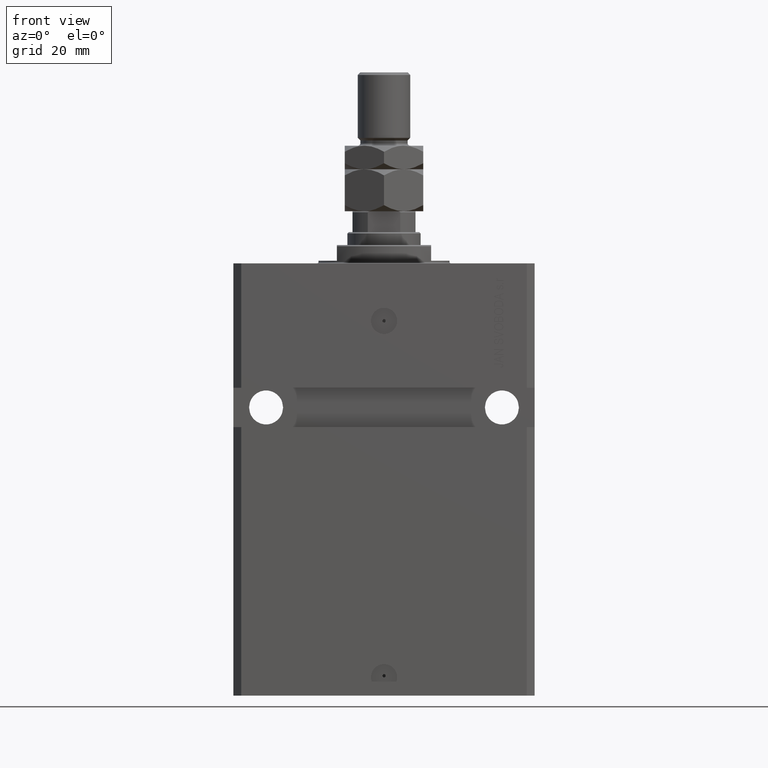
[diagram: clean part render]
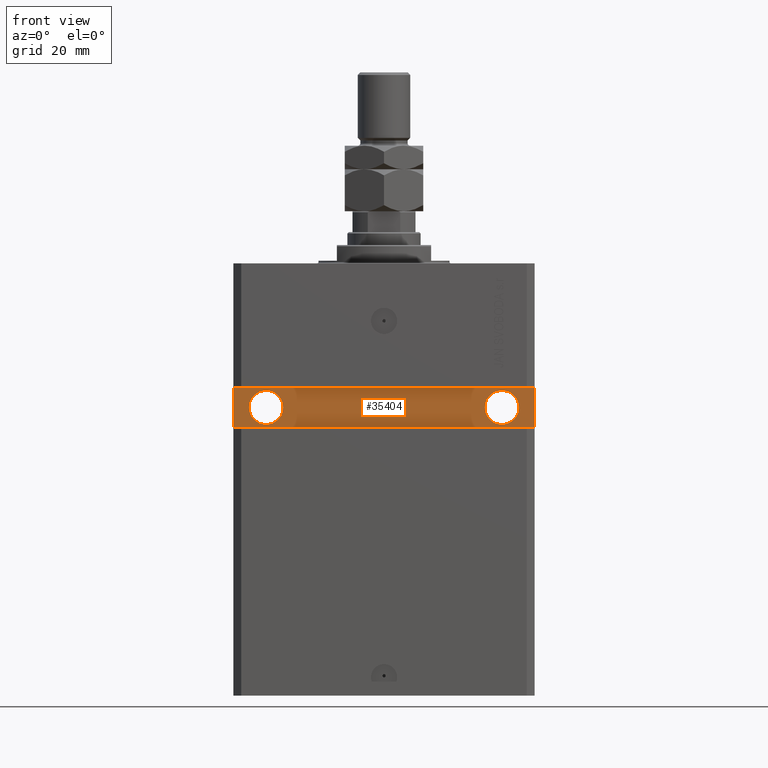
[diagram: same view with one face highlighted and labeled with its STEP entity id]
A machine part, front view. The second image highlights one B-rep face of the part: STEP entity #35404.
In plain terms, the highlighted planar face has unit normal (0, -1, 0).
Its self-contained STEP definition (entity closure, byte-faithful):
#302 = LINE ( 'NONE', #26106, #29911 ) ;
#436 = DIRECTION ( 'NONE',  ( 1.000000000000000000, 0.000000000000000000, 0.000000000000000000 ) ) ;
#2217 = AXIS2_PLACEMENT_3D ( 'NONE', #15124, #7339, #23815 ) ;
#2313 = EDGE_CURVE ( 'NONE', #16686, #27103, #302, .T. ) ;
#3055 = LINE ( 'NONE', #17894, #21486 ) ;
#3327 = CARTESIAN_POINT ( 'NONE',  ( -57.50000000000002132, -40.00000000000000000, -47.50000000000000711 ) ) ;
#3385 = CARTESIAN_POINT ( 'NONE',  ( -44.99999999999998579, -40.00000000000000000, -55.00000000000001421 ) ) ;
#3386 = VERTEX_POINT ( 'NONE', #3327 ) ;
#3988 = VERTEX_POINT ( 'NONE', #42585 ) ;
#5648 = EDGE_CURVE ( 'NONE', #27103, #3386, #3055, .T. ) ;
#7023 = EDGE_LOOP ( 'NONE', ( #25911, #12474 ) ) ;
#7339 = DIRECTION ( 'NONE',  ( 7.680174481697265102E-17, -1.000000000000000000, 0.000000000000000000 ) ) ;
#8699 = EDGE_CURVE ( 'NONE', #3386, #42381, #45331, .T. ) ;
#10190 = CIRCLE ( 'NONE', #25735, 6.499999999999999112 ) ;
#11211 = EDGE_CURVE ( 'NONE', #42227, #12662, #38704, .T. ) ;
#11240 = CARTESIAN_POINT ( 'NONE',  ( -57.50000000000002132, -40.00000000000000000, -62.50000000000000000 ) ) ;
#11753 = ORIENTED_EDGE ( 'NONE', *, *, #5648, .T. ) ;
#12328 = CIRCLE ( 'NONE', #2217, 6.499999999999999112 ) ;
#12386 = CIRCLE ( 'NONE', #26358, 6.499999999999999112 ) ;
#12468 = EDGE_CURVE ( 'NONE', #3988, #30810, #12386, .T. ) ;
#12474 = ORIENTED_EDGE ( 'NONE', *, *, #12468, .F. ) ;
#12662 = VERTEX_POINT ( 'NONE', #19919 ) ;
#14260 = AXIS2_PLACEMENT_3D ( 'NONE', #44440, #30381, #30129 ) ;
#15124 = CARTESIAN_POINT ( 'NONE',  ( 45.00000000000001421, -39.99999999999999289, -55.00000000000000000 ) ) ;
#16686 = VERTEX_POINT ( 'NONE', #40250 ) ;
#17894 = CARTESIAN_POINT ( 'NONE',  ( 57.50000000000000711, -39.99999999999998579, -47.49999999999998579 ) ) ;
#19007 = CARTESIAN_POINT ( 'NONE',  ( 45.00000000000001421, -39.99999999999999289, -55.00000000000000000 ) ) ;
#19597 = ORIENTED_EDGE ( 'NONE', *, *, #2313, .T. ) ;
#19919 = CARTESIAN_POINT ( 'NONE',  ( 38.50000000000001421, -39.99999999999999289, -55.00000000000000000 ) ) ;
#20282 = EDGE_CURVE ( 'NONE', #12662, #42227, #12328, .T. ) ;
#21486 = VECTOR ( 'NONE', #32006, 1000.000000000000000 ) ;
#22124 = PLANE ( 'NONE',  #14260 ) ;
#22159 = ORIENTED_EDGE ( 'NONE', *, *, #20282, .F. ) ;
#23815 = DIRECTION ( 'NONE',  ( 1.000000000000000000, 0.000000000000000000, 0.000000000000000000 ) ) ;
#24791 = CARTESIAN_POINT ( 'NONE',  ( -38.49999999999998579, -40.00000000000000000, -55.00000000000001421 ) ) ;
#25555 = AXIS2_PLACEMENT_3D ( 'NONE', #19007, #26562, #34554 ) ;
#25735 = AXIS2_PLACEMENT_3D ( 'NONE', #29858, #29139, #436 ) ;
#25911 = ORIENTED_EDGE ( 'NONE', *, *, #30847, .F. ) ;
#26106 = CARTESIAN_POINT ( 'NONE',  ( 57.50000000000000711, -39.99999999999998579, -62.49999999999999289 ) ) ;
#26345 = DIRECTION ( 'NONE',  ( 0.000000000000000000, 0.000000000000000000, 1.000000000000000000 ) ) ;
#26358 = AXIS2_PLACEMENT_3D ( 'NONE', #3385, #33046, #30614 ) ;
#26508 = FACE_BOUND ( 'NONE', #7023, .T. ) ;
#26562 = DIRECTION ( 'NONE',  ( 7.680174481697265102E-17, -1.000000000000000000, 0.000000000000000000 ) ) ;
#26664 = CARTESIAN_POINT ( 'NONE',  ( -57.50000000000002132, -40.00000000000000000, -47.50000000000000711 ) ) ;
#26692 = CARTESIAN_POINT ( 'NONE',  ( 51.50000000000001421, -39.99999999999999289, -55.00000000000000000 ) ) ;
#27103 = VERTEX_POINT ( 'NONE', #42228 ) ;
#29139 = DIRECTION ( 'NONE',  ( 1.101411730780568590E-16, -1.000000000000000000, 0.000000000000000000 ) ) ;
#29321 = VECTOR ( 'NONE', #41439, 1000.000000000000000 ) ;
#29491 = LINE ( 'NONE', #11240, #43620 ) ;
#29652 = FACE_BOUND ( 'NONE', #47563, .T. ) ;
#29858 = CARTESIAN_POINT ( 'NONE',  ( -44.99999999999998579, -40.00000000000000000, -55.00000000000001421 ) ) ;
#29911 = VECTOR ( 'NONE', #26345, 1000.000000000000000 ) ;
#30129 = DIRECTION ( 'NONE',  ( 1.000000000000000000, 1.206764157201257045E-16, 0.000000000000000000 ) ) ;
#30381 = DIRECTION ( 'NONE',  ( 1.206764157201257045E-16, -1.000000000000000000, 0.000000000000000000 ) ) ;
#30614 = DIRECTION ( 'NONE',  ( 1.000000000000000000, 0.000000000000000000, 0.000000000000000000 ) ) ;
#30810 = VERTEX_POINT ( 'NONE', #24791 ) ;
#30847 = EDGE_CURVE ( 'NONE', #30810, #3988, #10190, .T. ) ;
#31430 = EDGE_LOOP ( 'NONE', ( #39519, #19597, #11753, #37440 ) ) ;
#32006 = DIRECTION ( 'NONE',  ( -1.000000000000000000, -1.206764157201257045E-16, -1.810146235801885321E-16 ) ) ;
#32013 = DIRECTION ( 'NONE',  ( 1.000000000000000000, 1.206764157201257045E-16, 6.033820786006285224E-17 ) ) ;
#32146 = EDGE_CURVE ( 'NONE', #42381, #16686, #29491, .T. ) ;
#33046 = DIRECTION ( 'NONE',  ( 1.101411730780568590E-16, -1.000000000000000000, 0.000000000000000000 ) ) ;
#34554 = DIRECTION ( 'NONE',  ( 1.000000000000000000, 0.000000000000000000, 0.000000000000000000 ) ) ;
#35404 = ADVANCED_FACE ( 'NONE', ( #29652, #26508, #44681 ), #22124, .T. ) ;
#37440 = ORIENTED_EDGE ( 'NONE', *, *, #8699, .T. ) ;
#38704 = CIRCLE ( 'NONE', #25555, 6.499999999999999112 ) ;
#39519 = ORIENTED_EDGE ( 'NONE', *, *, #32146, .T. ) ;
#39742 = CARTESIAN_POINT ( 'NONE',  ( -57.50000000000002132, -40.00000000000000000, -62.50000000000000000 ) ) ;
#40250 = CARTESIAN_POINT ( 'NONE',  ( 57.50000000000000711, -39.99999999999998579, -62.49999999999999289 ) ) ;
#41439 = DIRECTION ( 'NONE',  ( 0.000000000000000000, 0.000000000000000000, -1.000000000000000000 ) ) ;
#42227 = VERTEX_POINT ( 'NONE', #26692 ) ;
#42228 = CARTESIAN_POINT ( 'NONE',  ( 57.50000000000000711, -39.99999999999998579, -47.49999999999998579 ) ) ;
#42381 = VERTEX_POINT ( 'NONE', #39742 ) ;
#42585 = CARTESIAN_POINT ( 'NONE',  ( -51.49999999999998579, -40.00000000000000000, -55.00000000000001421 ) ) ;
#43620 = VECTOR ( 'NONE', #32013, 1000.000000000000000 ) ;
#43761 = ORIENTED_EDGE ( 'NONE', *, *, #11211, .F. ) ;
#44440 = CARTESIAN_POINT ( 'NONE',  ( 4.842396851142260860E-15, -39.99999999999999289, 0.000000000000000000 ) ) ;
#44681 = FACE_OUTER_BOUND ( 'NONE', #31430, .T. ) ;
#45331 = LINE ( 'NONE', #26664, #29321 ) ;
#47563 = EDGE_LOOP ( 'NONE', ( #43761, #22159 ) ) ;